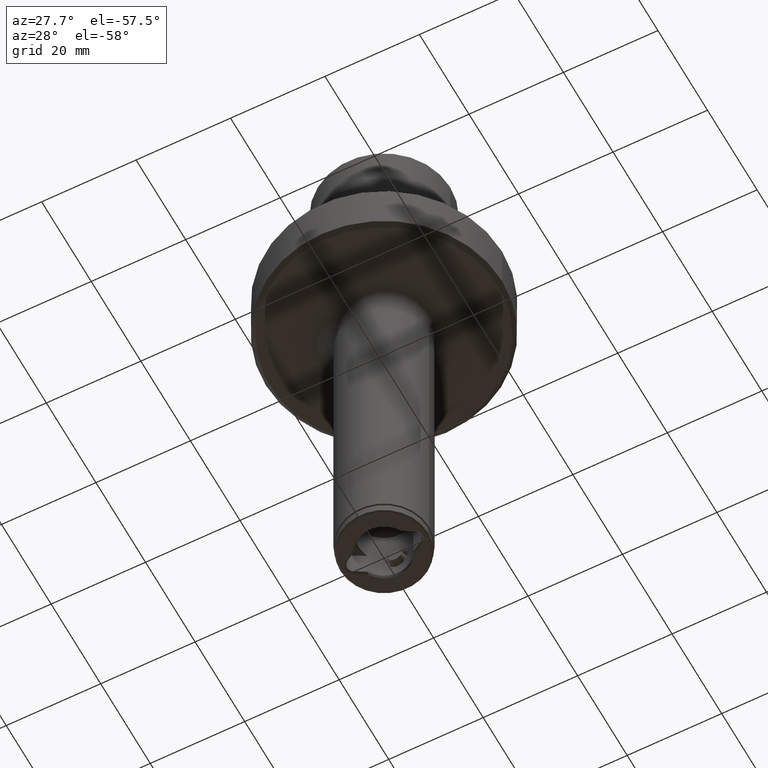
[diagram: clean part render]
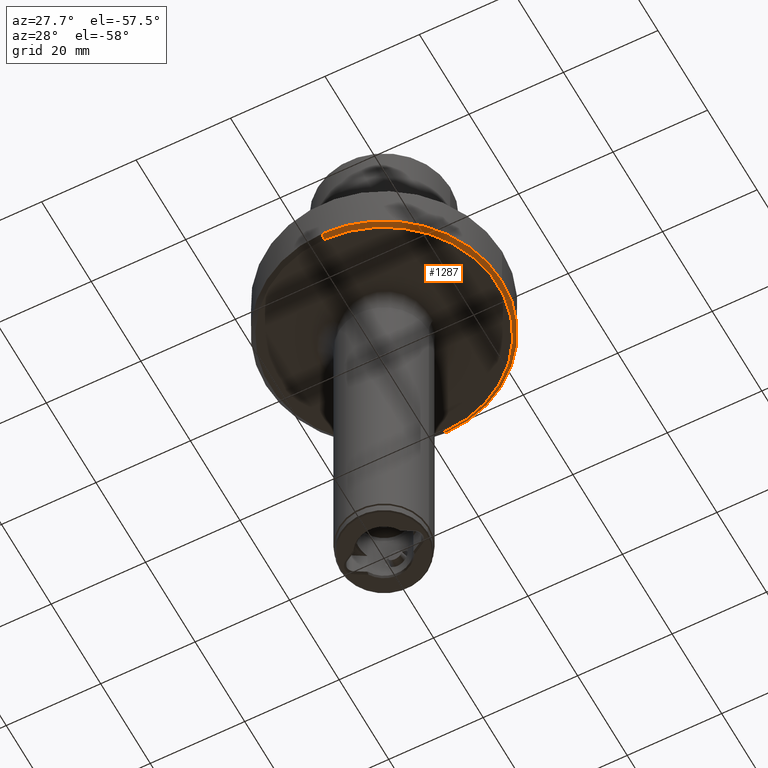
[diagram: same view with one face highlighted and labeled with its STEP entity id]
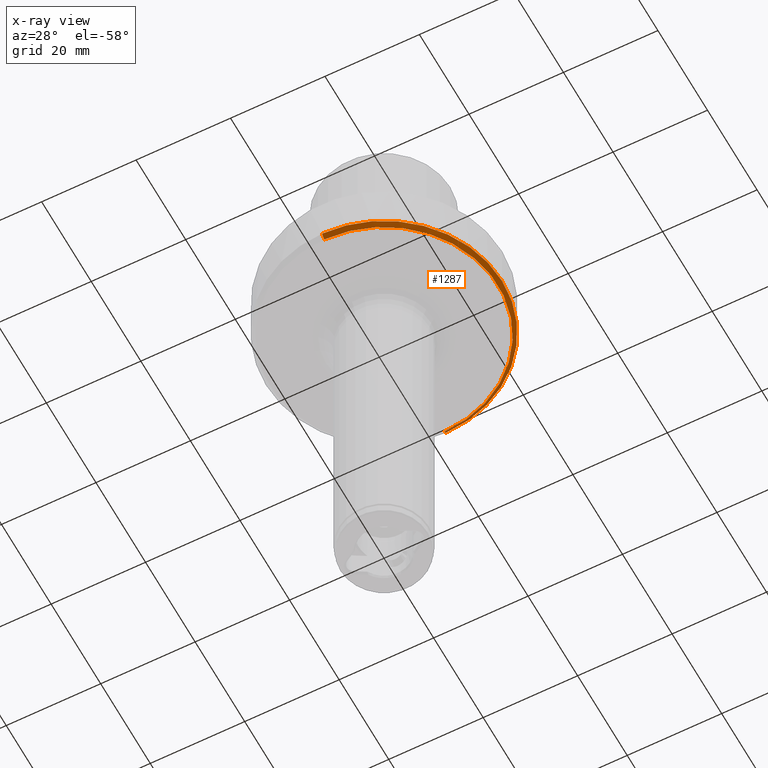
[diagram: x-ray of the same camera — body ghosted, the highlighted face saturated]
A machine part, auxiliary view. The second image highlights one B-rep face of the part: STEP entity #1287.
The next image is the same camera in x-ray: the body ghosted, the highlighted face saturated — about 0% of this face is hidden behind the body in this view.
In plain terms, the highlighted conical surface has half-angle 45 deg.
Its self-contained STEP definition (entity closure, byte-faithful):
#559=EDGE_CURVE('NONE',#583,#1023,#1585,.T.);
#561=VERTEX_POINT('NONE',#1587);
#583=VERTEX_POINT('NONE',#1612);
#747=EDGE_CURVE('NONE',#561,#1167,#1793,.T.);
#981=EDGE_CURVE('NONE',#1465,#1167,#2054,.T.);
#1023=VERTEX_POINT('NONE',#2100);
#1167=VERTEX_POINT('NONE',#2262);
#1259=EDGE_CURVE('NONE',#583,#1465,#2364,.T.);
#1287=ADVANCED_FACE('NONE',(#2395),#2396,.T.);
#1363=EDGE_CURVE('NONE',#1023,#561,#2478,.T.);
#1465=VERTEX_POINT('NONE',#2600);
#1585=LINE('',#2725,#2726);
#1587=CARTESIAN_POINT('',(25.0,0.0,-11.05));
#1612=CARTESIAN_POINT('',(3.00947011451849E-015,24.15,-11.9));
#1793=CIRCLE('',#3140,25.0);
#2054=LINE('',#3544,#3545);
#2100=CARTESIAN_POINT('',(3.06151588455594E-015,25.0,-11.05));
#2262=CARTESIAN_POINT('',(0.0,-25.0,-11.05));
#2364=CIRCLE('',#4003,24.15);
#2395=FACE_OUTER_BOUND('',#4046,.T.);
#2396=CONICAL_SURFACE('',#4047,24.15,0.785398163397447);
#2478=CIRCLE('',#4164,25.0);
#2600=CARTESIAN_POINT('',(0.0,-24.15,-11.9));
#2725=CARTESIAN_POINT('',(2.95742434448104E-015,24.15,-11.9));
#2726=VECTOR('',#4549,1000.0);
#3140=AXIS2_PLACEMENT_3D('',#4799,#4800,#4801);
#3544=CARTESIAN_POINT('',(0.0,-24.15,-11.9));
#3545=VECTOR('',#5085,1000.0);
#4003=AXIS2_PLACEMENT_3D('',#5471,#5472,#5473);
#4046=EDGE_LOOP('',(#5516,#5517,#5518,#5519,#5520));
#4047=AXIS2_PLACEMENT_3D('',#5521,#5522,#5523);
#4164=AXIS2_PLACEMENT_3D('',#5621,#5622,#5623);
#4549=DIRECTION('',(8.65927457071934E-017,0.707106781186546,0.707106781186549));
#4799=CARTESIAN_POINT('',(0.0,9.13738539168065E-018,-11.05));
#4800=DIRECTION('',(0.0,0.0,-1.0));
#4801=DIRECTION('',(0.0,-1.0,0.0));
#5085=DIRECTION('',(0.0,-0.707106781186546,0.707106781186549));
#5471=CARTESIAN_POINT('',(0.0,9.3265882560638E-018,-11.9));
#5472=DIRECTION('',(0.0,0.0,-1.0));
#5473=DIRECTION('',(1.0,0.0,0.0));
#5516=ORIENTED_EDGE('',*,*,#1259,.F.);
#5517=ORIENTED_EDGE('',*,*,#559,.T.);
#5518=ORIENTED_EDGE('',*,*,#1363,.T.);
#5519=ORIENTED_EDGE('',*,*,#747,.T.);
#5520=ORIENTED_EDGE('',*,*,#981,.F.);
#5521=CARTESIAN_POINT('',(0.0,9.3265882560638E-018,-11.9));
#5522=DIRECTION('',(-0.0,-0.0,1.0));
#5523=DIRECTION('',(0.0,-1.0,0.0));
#5621=CARTESIAN_POINT('',(0.0,9.13738539168065E-018,-11.05));
#5622=DIRECTION('',(0.0,0.0,-1.0));
#5623=DIRECTION('',(0.0,-1.0,0.0));